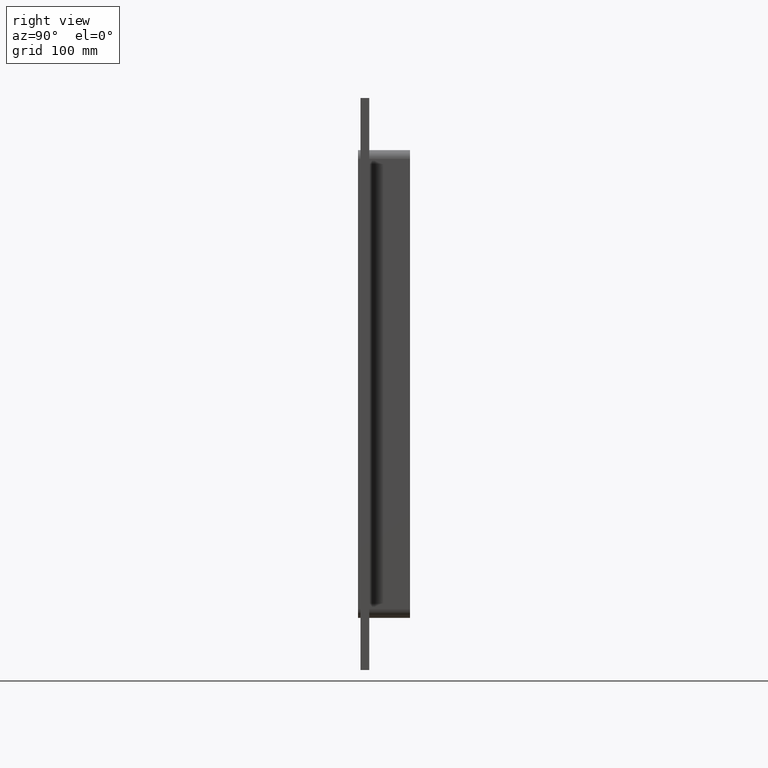
[diagram: clean part render]
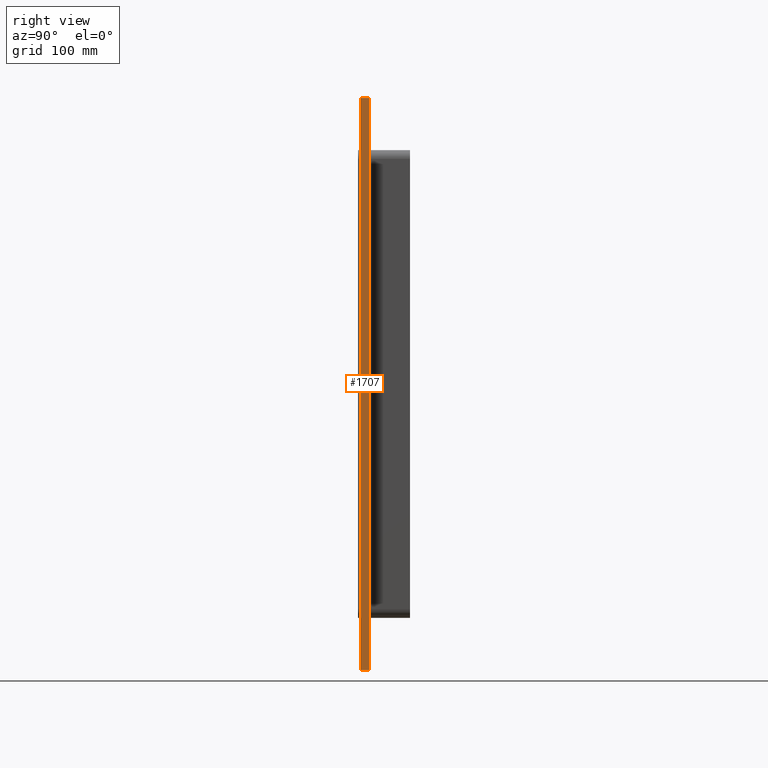
[diagram: same view with one face highlighted and labeled with its STEP entity id]
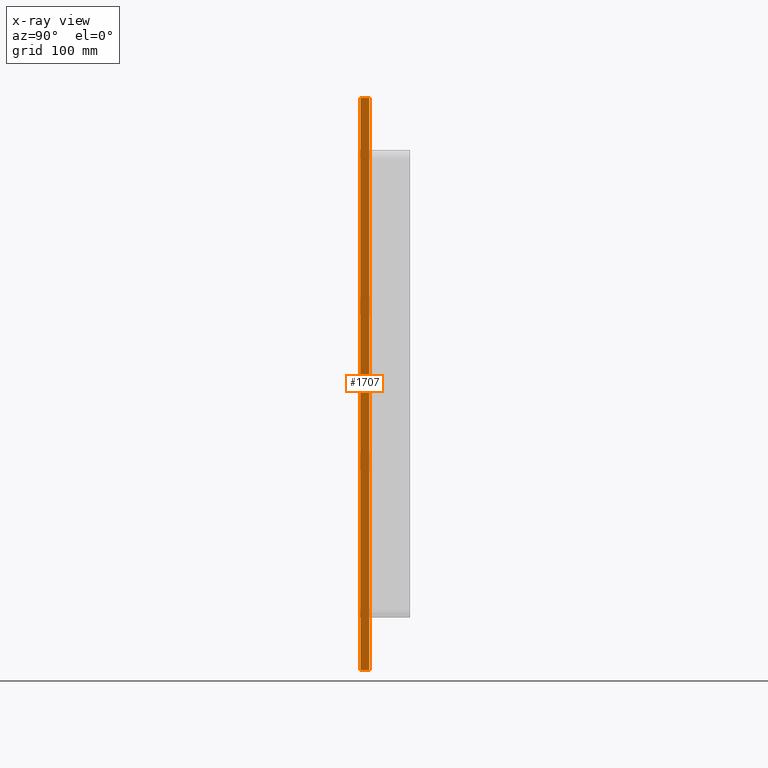
[diagram: x-ray of the same camera — body ghosted, the highlighted face saturated]
A machine part, right view. The second image highlights one B-rep face of the part: STEP entity #1707.
The next image is the same camera in x-ray: the body ghosted, the highlighted face saturated — about 0% of this face is hidden behind the body in this view.
In plain terms, the highlighted planar face has unit normal (1, 0, 0).
Its self-contained STEP definition (entity closure, byte-faithful):
#1439=CARTESIAN_POINT('',(260.75,10.0,329.25000000000006));
#1440=VERTEX_POINT('',#1439);
#1447=CARTESIAN_POINT('',(260.75,10.0,-329.25000000000006));
#1448=VERTEX_POINT('',#1447);
#1449=CARTESIAN_POINT('',(260.75,10.0,329.25000000000006));
#1450=DIRECTION('',(0.0,0.0,-1.0));
#1451=VECTOR('',#1450,658.50000000000011);
#1452=LINE('',#1449,#1451);
#1453=EDGE_CURVE('',#1440,#1448,#1452,.T.);
#1549=CARTESIAN_POINT('',(260.75,0.0,329.25000000000006));
#1550=VERTEX_POINT('',#1549);
#1565=CARTESIAN_POINT('',(260.75,0.0,-329.25000000000006));
#1566=VERTEX_POINT('',#1565);
#1573=CARTESIAN_POINT('',(260.75,0.0,329.25000000000006));
#1574=DIRECTION('',(0.0,0.0,-1.0));
#1575=VECTOR('',#1574,658.50000000000011);
#1576=LINE('',#1573,#1575);
#1577=EDGE_CURVE('',#1550,#1566,#1576,.T.);
#1682=CARTESIAN_POINT('',(260.75,0.0,-329.25000000000006));
#1683=DIRECTION('',(0.0,1.0,0.0));
#1684=VECTOR('',#1683,10.0);
#1685=LINE('',#1682,#1684);
#1686=EDGE_CURVE('',#1566,#1448,#1685,.T.);
#1691=CARTESIAN_POINT('',(260.75,0.0,329.25000000000006));
#1692=DIRECTION('',(1.0,0.0,0.0));
#1693=DIRECTION('',(0.0,0.0,-1.0));
#1694=AXIS2_PLACEMENT_3D('',#1691,#1692,#1693);
#1695=PLANE('',#1694);
#1696=ORIENTED_EDGE('',*,*,#1577,.T.);
#1697=ORIENTED_EDGE('',*,*,#1686,.T.);
#1698=ORIENTED_EDGE('',*,*,#1453,.F.);
#1699=CARTESIAN_POINT('',(260.75,0.0,329.25000000000006));
#1700=DIRECTION('',(0.0,1.0,0.0));
#1701=VECTOR('',#1700,10.0);
#1702=LINE('',#1699,#1701);
#1703=EDGE_CURVE('',#1550,#1440,#1702,.T.);
#1704=ORIENTED_EDGE('',*,*,#1703,.F.);
#1705=EDGE_LOOP('',(#1696,#1697,#1698,#1704));
#1706=FACE_OUTER_BOUND('',#1705,.T.);
#1707=ADVANCED_FACE('',(#1706),#1695,.T.);